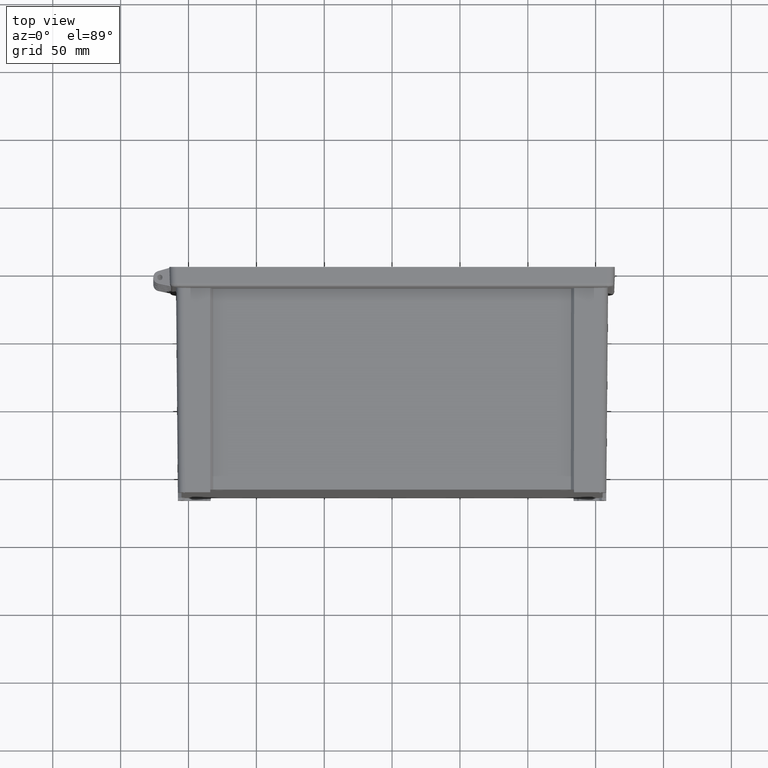
[diagram: clean part render]
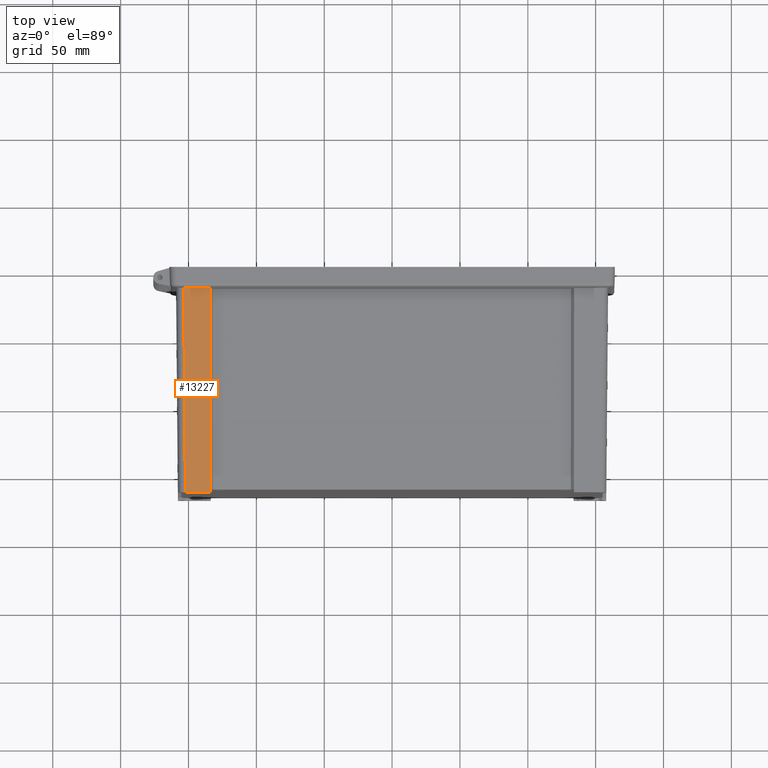
[diagram: same view with one face highlighted and labeled with its STEP entity id]
A machine part, top view. The second image highlights one B-rep face of the part: STEP entity #13227.
In plain terms, the highlighted planar face has unit normal (0, -0.0087, 1).
Its self-contained STEP definition (entity closure, byte-faithful):
#304 = CARTESIAN_POINT ( 'NONE',  ( -134.1108583804840500, -14.27348257502568000, 184.6087225808400900 ) ) ;
#1154 = LINE ( 'NONE', #9916, #3885 ) ;
#1419 = CARTESIAN_POINT ( 'NONE',  ( 164.0729938033534300, -14.00000000000000200, 184.6111092271154300 ) ) ;
#1849 = VERTEX_POINT ( 'NONE', #5356 ) ;
#1972 = DIRECTION ( 'NONE',  ( -0.0009171954542809241700, 0.9999615024563481800, 0.008726531827785091400 ) ) ;
#2923 = CARTESIAN_POINT ( 'NONE',  ( -151.2888624870207400, -15.44231971034376200, 184.5985222936912500 ) ) ;
#3262 = VECTOR ( 'NONE', #1972, 1000.000000000000100 ) ;
#3501 = DIRECTION ( 'NONE',  ( 1.000000000000000000, 0.0000000000000000000, 0.0000000000000000000 ) ) ;
#3535 = ORIENTED_EDGE ( 'NONE', *, *, #16199, .T. ) ;
#3881 = EDGE_CURVE ( 'NONE', #7451, #20325, #4507, .T. ) ;
#3885 = VECTOR ( 'NONE', #3501, 1000.000000000000000 ) ;
#3928 = VECTOR ( 'NONE', #8185, 1000.000000000000000 ) ;
#4390 = CARTESIAN_POINT ( 'NONE',  ( -152.8262538122120900, -15.42489367527743300, 184.5986743683954500 ) ) ;
#4507 = LINE ( 'NONE', #304, #3262 ) ;
#5356 = CARTESIAN_POINT ( 'NONE',  ( -151.2888624870207400, -15.44231971034376200, 184.5985222936912500 ) ) ;
#5678 = LINE ( 'NONE', #19849, #6178 ) ;
#6019 = CARTESIAN_POINT ( 'NONE',  ( -153.5991877945093100, -15.39005838567739900, 184.5989783713622200 ) ) ;
#6175 = LINE ( 'NONE', #17903, #3928 ) ;
#6178 = VECTOR ( 'NONE', #18293, 1000.000000000000100 ) ;
#7451 = VERTEX_POINT ( 'NONE', #10395 ) ;
#7759 = CARTESIAN_POINT ( 'NONE',  ( -134.1097862871037600, -15.44231971034376200, 184.5985222936912500 ) ) ;
#8095 =( BOUNDED_CURVE ( )  B_SPLINE_CURVE ( 3, ( #2923, #20588, #4390, #6019 ),
 .UNSPECIFIED., .F., .F. ) 
 B_SPLINE_CURVE_WITH_KNOTS ( ( 4, 4 ),
 ( 4.405368760606515700, 4.467434366830056000 ),
 .UNSPECIFIED. ) 
 CURVE ( )  GEOMETRIC_REPRESENTATION_ITEM ( )  RATIONAL_B_SPLINE_CURVE ( ( 1.000000000000000000, 0.9996790141382971800, 0.9996790141382971800, 1.000000000000000000 ) ) 
 REPRESENTATION_ITEM ( '' )  );
#8185 = DIRECTION ( 'NONE',  ( 1.000000000000000000, 0.0000000000000000000, 0.0000000000000000000 ) ) ;
#9916 = CARTESIAN_POINT ( 'NONE',  ( -157.8020790585016200, -166.0000000000000000, 183.2846253229200800 ) ) ;
#10395 = CARTESIAN_POINT ( 'NONE',  ( -133.9735246123037800, -164.0000000000000000, 183.3020790585015900 ) ) ;
#11918 = VERTEX_POINT ( 'NONE', #19737 ) ;
#12043 = ORIENTED_EDGE ( 'NONE', *, *, #15440, .F. ) ;
#12670 = PLANE ( 'NONE',  #14243 ) ;
#13184 = ORIENTED_EDGE ( 'NONE', *, *, #16852, .T. ) ;
#13227 = ADVANCED_FACE ( 'NONE', ( #17615 ), #12670, .T. ) ;
#13475 = EDGE_LOOP ( 'NONE', ( #12043, #13184, #17073, #16047, #3535, #13525 ) ) ;
#13525 = ORIENTED_EDGE ( 'NONE', *, *, #3881, .T. ) ;
#14243 = AXIS2_PLACEMENT_3D ( 'NONE', #1419, #17459, #15638 ) ;
#14402 = VERTEX_POINT ( 'NONE', #17434 ) ;
#14490 = LINE ( 'NONE', #20284, #19513 ) ;
#15440 = EDGE_CURVE ( 'NONE', #1849, #20325, #6175, .T. ) ;
#15539 = CARTESIAN_POINT ( 'NONE',  ( -153.5991877945093100, -15.39005838567739900, 184.5989783713622200 ) ) ;
#15638 = DIRECTION ( 'NONE',  ( 0.0000000000000000000, -0.9999619230641713100, -0.008726535498373953800 ) ) ;
#15789 = DIRECTION ( 'NONE',  ( 0.008726203243944175700, -0.9999238504775704900, -0.008726203243944238200 ) ) ;
#15801 = EDGE_CURVE ( 'NONE', #19727, #11918, #14490, .T. ) ;
#16047 = ORIENTED_EDGE ( 'NONE', *, *, #18665, .T. ) ;
#16199 = EDGE_CURVE ( 'NONE', #14402, #7451, #5678, .T. ) ;
#16852 = EDGE_CURVE ( 'NONE', #1849, #19727, #8095, .T. ) ;
#17073 = ORIENTED_EDGE ( 'NONE', *, *, #15801, .T. ) ;
#17434 = CARTESIAN_POINT ( 'NONE',  ( -133.9892400264094800, -166.0000000000000000, 183.2846253229200800 ) ) ;
#17459 = DIRECTION ( 'NONE',  ( 0.0000000000000000000, -0.008726535498373953800, 0.9999619230641713100 ) ) ;
#17615 = FACE_OUTER_BOUND ( 'NONE', #13475, .T. ) ;
#17903 = CARTESIAN_POINT ( 'NONE',  ( 164.0729938033534300, -15.44231971034376200, 184.5985222936912500 ) ) ;
#18293 = DIRECTION ( 'NONE',  ( 0.007857165312980548800, 0.9999310562397356600, 0.008726266127677982700 ) ) ;
#18665 = EDGE_CURVE ( 'NONE', #11918, #14402, #1154, .T. ) ;
#19513 = VECTOR ( 'NONE', #15789, 1000.000000000000100 ) ;
#19727 = VERTEX_POINT ( 'NONE', #15539 ) ;
#19737 = CARTESIAN_POINT ( 'NONE',  ( -152.2848347460672500, -166.0000000000000000, 183.2846253229200800 ) ) ;
#19849 = CARTESIAN_POINT ( 'NONE',  ( -133.9749956692266400, -164.1872119834651200, 183.3004452842730500 ) ) ;
#20284 = CARTESIAN_POINT ( 'NONE',  ( -153.5871280626717800, -16.77196677786142900, 184.5869186395246700 ) ) ;
#20325 = VERTEX_POINT ( 'NONE', #7759 ) ;
#20588 = CARTESIAN_POINT ( 'NONE',  ( -152.0558981030914400, -15.44231971034377100, 184.5985222936912700 ) ) ;